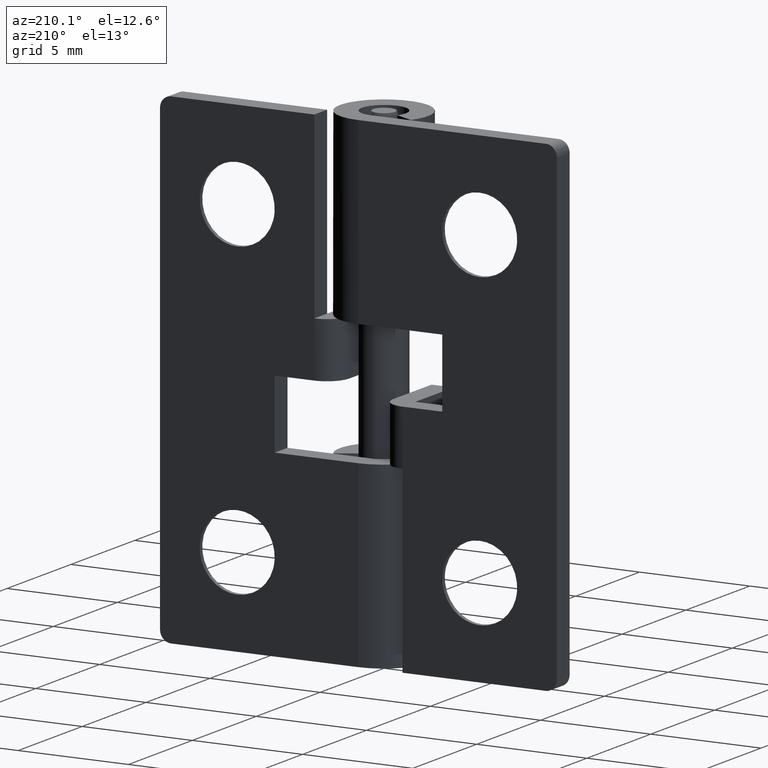
[diagram: clean part render]
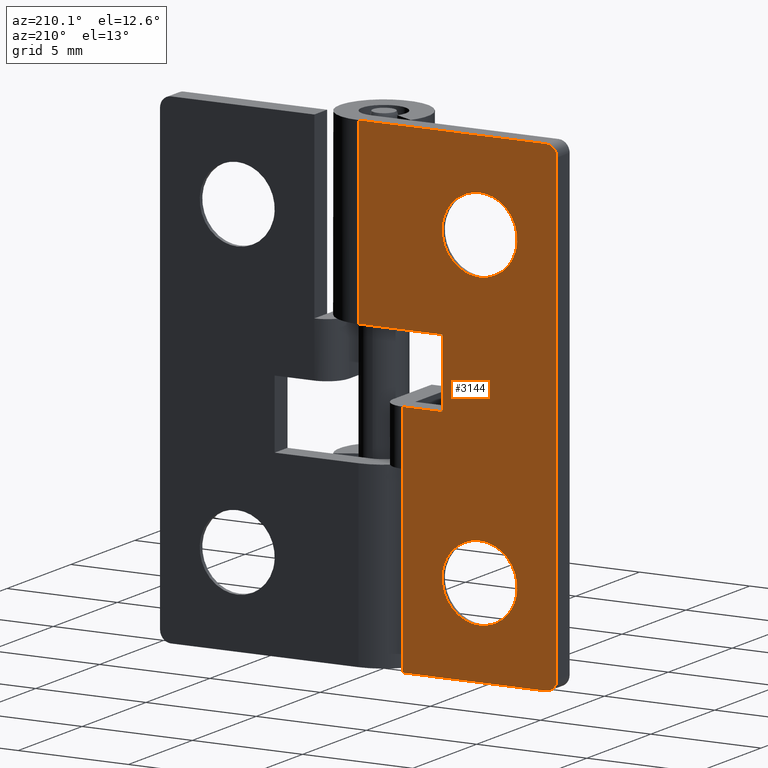
[diagram: same view with one face highlighted and labeled with its STEP entity id]
A machine part, auxiliary view. The second image highlights one B-rep face of the part: STEP entity #3144.
In plain terms, the highlighted face is a freeform B-spline surface patch.
Its self-contained STEP definition (entity closure, byte-faithful):
#1785=CARTESIAN_POINT('',(-3.803170842696131,2.0,18.103782517426779));
#1786=VERTEX_POINT('',#1785);
#1787=CARTESIAN_POINT('',(-5.500000000000000,2.0,16.300000000000001));
#1788=VERTEX_POINT('',#1787);
#1789=CARTESIAN_POINT('',(-3.803170842696130,2.000000000000000,18.103782517426779));
#1790=CARTESIAN_POINT('',(-3.800000000000000,2.000000000000000,18.051939697716669));
#1791=CARTESIAN_POINT('',(-3.799999999999999,2.0,18.0));
#1792=CARTESIAN_POINT('',(-3.799999999999999,2.000000000000000,16.299999999999994));
#1793=CARTESIAN_POINT('',(-5.500000000000000,2.0,16.300000000000001));
#1801=(BOUNDED_CURVE()B_SPLINE_CURVE(2,(#1789,#1790,#1791,#1792,#1793),.UNSPECIFIED.,.F.,.U.)B_SPLINE_CURVE_WITH_KNOTS((3,2,3),(0.239332962219849,0.250000000000000,0.500000000000000),.UNSPECIFIED.)CURVE()GEOMETRIC_REPRESENTATION_ITEM()RATIONAL_B_SPLINE_CURVE((0.976072041625795,0.987502787877467,1.0,0.707106781186548,1.0))REPRESENTATION_ITEM(''));
#1802=EDGE_CURVE('',#1786,#1788,#1801,.T.);
#1804=CARTESIAN_POINT('',(-7.196829157303870,2.0,17.896217482573210));
#1805=VERTEX_POINT('',#1804);
#1806=CARTESIAN_POINT('',(-5.500000000000000,2.0,16.300000000000001));
#1807=CARTESIAN_POINT('',(-7.099200313534285,2.000000000000000,16.299999999999997));
#1808=CARTESIAN_POINT('',(-7.196829157303869,2.0,17.896217482573210));
#1816=(BOUNDED_CURVE()B_SPLINE_CURVE(2,(#1806,#1807,#1808),.UNSPECIFIED.,.F.,.U.)B_SPLINE_CURVE_WITH_KNOTS((3,3),(0.500000000000000,0.739332962219848),.UNSPECIFIED.)CURVE()GEOMETRIC_REPRESENTATION_ITEM()RATIONAL_B_SPLINE_CURVE((1.0,0.719603993309081,0.976072041625794))REPRESENTATION_ITEM(''));
#1817=EDGE_CURVE('',#1788,#1805,#1816,.T.);
#1884=CARTESIAN_POINT('',(-5.500000000000000,2.0,19.699999999999999));
#1885=VERTEX_POINT('',#1884);
#1886=CARTESIAN_POINT('',(-5.500000000000000,2.0,19.699999999999999));
#1887=CARTESIAN_POINT('',(-3.900799686465713,2.000000000000000,19.699999999999999));
#1888=CARTESIAN_POINT('',(-3.803170842696130,2.000000000000000,18.103782517426783));
#1896=(BOUNDED_CURVE()B_SPLINE_CURVE(2,(#1886,#1887,#1888),.UNSPECIFIED.,.F.,.U.)B_SPLINE_CURVE_WITH_KNOTS((3,3),(0.0,0.239332962219848),.UNSPECIFIED.)CURVE()GEOMETRIC_REPRESENTATION_ITEM()RATIONAL_B_SPLINE_CURVE((1.0,0.719603993309081,0.976072041625795))REPRESENTATION_ITEM(''));
#1897=EDGE_CURVE('',#1885,#1786,#1896,.T.);
#1931=CARTESIAN_POINT('',(-7.196829157303869,2.0,17.896217482573210));
#1932=CARTESIAN_POINT('',(-7.200000000000001,2.0,17.948060302283327));
#1933=CARTESIAN_POINT('',(-7.200000000000000,2.0,18.0));
#1934=CARTESIAN_POINT('',(-7.200000000000000,2.000000000000000,19.700000000000006));
#1935=CARTESIAN_POINT('',(-5.500000000000000,2.0,19.699999999999999));
#1943=(BOUNDED_CURVE()B_SPLINE_CURVE(2,(#1931,#1932,#1933,#1934,#1935),.UNSPECIFIED.,.F.,.U.)B_SPLINE_CURVE_WITH_KNOTS((3,2,3),(0.739332962219848,0.750000000000000,1.0),.UNSPECIFIED.)CURVE()GEOMETRIC_REPRESENTATION_ITEM()RATIONAL_B_SPLINE_CURVE((0.976072041625794,0.987502787877466,1.0,0.707106781186548,1.0))REPRESENTATION_ITEM(''));
#1944=EDGE_CURVE('',#1805,#1885,#1943,.T.);
#2097=CARTESIAN_POINT('',(-3.803170842696131,2.0,4.103782517426782));
#2098=VERTEX_POINT('',#2097);
#2099=CARTESIAN_POINT('',(-5.500000000000000,2.0,2.300000000000000));
#2100=VERTEX_POINT('',#2099);
#2101=CARTESIAN_POINT('',(-3.803170842696131,2.000000000000000,4.103782517426782));
#2102=CARTESIAN_POINT('',(-3.800000000000000,2.0,4.051939697716670));
#2103=CARTESIAN_POINT('',(-3.799999999999999,2.0,4.0));
#2104=CARTESIAN_POINT('',(-3.799999999999999,2.000000000000000,2.299999999999999));
#2105=CARTESIAN_POINT('',(-5.500000000000000,2.0,2.300000000000000));
#2113=(BOUNDED_CURVE()B_SPLINE_CURVE(2,(#2101,#2102,#2103,#2104,#2105),.UNSPECIFIED.,.F.,.U.)B_SPLINE_CURVE_WITH_KNOTS((3,2,3),(0.239332962219849,0.250000000000000,0.500000000000000),.UNSPECIFIED.)CURVE()GEOMETRIC_REPRESENTATION_ITEM()RATIONAL_B_SPLINE_CURVE((0.976072041625795,0.987502787877467,1.0,0.707106781186548,1.0))REPRESENTATION_ITEM(''));
#2114=EDGE_CURVE('',#2098,#2100,#2113,.T.);
#2116=CARTESIAN_POINT('',(-7.196829157303870,2.0,3.896217482573218));
#2117=VERTEX_POINT('',#2116);
#2118=CARTESIAN_POINT('',(-5.500000000000000,2.0,2.300000000000000));
#2119=CARTESIAN_POINT('',(-7.099200313534291,2.000000000000000,2.300000000000000));
#2120=CARTESIAN_POINT('',(-7.196829157303869,2.000000000000000,3.896217482573218));
#2128=(BOUNDED_CURVE()B_SPLINE_CURVE(2,(#2118,#2119,#2120),.UNSPECIFIED.,.F.,.U.)B_SPLINE_CURVE_WITH_KNOTS((3,3),(0.500000000000000,0.739332962219849),.UNSPECIFIED.)CURVE()GEOMETRIC_REPRESENTATION_ITEM()RATIONAL_B_SPLINE_CURVE((1.0,0.719603993309080,0.976072041625795))REPRESENTATION_ITEM(''));
#2129=EDGE_CURVE('',#2100,#2117,#2128,.T.);
#2196=CARTESIAN_POINT('',(-5.500000000000000,2.0,5.700000000000000));
#2197=VERTEX_POINT('',#2196);
#2198=CARTESIAN_POINT('',(-5.500000000000000,2.0,5.700000000000000));
#2199=CARTESIAN_POINT('',(-3.900799686465710,2.000000000000000,5.700000000000000));
#2200=CARTESIAN_POINT('',(-3.803170842696130,2.000000000000000,4.103782517426782));
#2208=(BOUNDED_CURVE()B_SPLINE_CURVE(2,(#2198,#2199,#2200),.UNSPECIFIED.,.F.,.U.)B_SPLINE_CURVE_WITH_KNOTS((3,3),(0.0,0.239332962219849),.UNSPECIFIED.)CURVE()GEOMETRIC_REPRESENTATION_ITEM()RATIONAL_B_SPLINE_CURVE((1.0,0.719603993309080,0.976072041625795))REPRESENTATION_ITEM(''));
#2209=EDGE_CURVE('',#2197,#2098,#2208,.T.);
#2243=CARTESIAN_POINT('',(-7.196829157303869,2.000000000000000,3.896217482573218));
#2244=CARTESIAN_POINT('',(-7.199999999999999,2.000000000000000,3.948060302283331));
#2245=CARTESIAN_POINT('',(-7.200000000000000,2.0,4.0));
#2246=CARTESIAN_POINT('',(-7.200000000000000,2.000000000000000,5.699999999999999));
#2247=CARTESIAN_POINT('',(-5.500000000000000,2.0,5.700000000000000));
#2255=(BOUNDED_CURVE()B_SPLINE_CURVE(2,(#2243,#2244,#2245,#2246,#2247),.UNSPECIFIED.,.F.,.U.)B_SPLINE_CURVE_WITH_KNOTS((3,2,3),(0.739332962219849,0.750000000000000,1.0),.UNSPECIFIED.)CURVE()GEOMETRIC_REPRESENTATION_ITEM()RATIONAL_B_SPLINE_CURVE((0.976072041625795,0.987502787877467,1.0,0.707106781186548,1.0))REPRESENTATION_ITEM(''));
#2256=EDGE_CURVE('',#2117,#2197,#2255,.T.);
#2518=CARTESIAN_POINT('',(-2.0,2.0,8.199996999999900));
#2519=VERTEX_POINT('',#2518);
#2535=CARTESIAN_POINT('',(-2.0,2.0,10.699997000000000));
#2536=VERTEX_POINT('',#2535);
#2537=CARTESIAN_POINT('',(-2.0,2.0,10.699997000000000));
#2538=CARTESIAN_POINT('',(-2.0,2.0,8.199996999999900));
#2539=QUASI_UNIFORM_CURVE('',1,(#2537,#2538),.UNSPECIFIED.,.F.,.U.);
#2540=EDGE_CURVE('',#2536,#2519,#2539,.T.);
#2665=CARTESIAN_POINT('',(-3.799995000000000,2.0,10.699997000000000));
#2666=VERTEX_POINT('',#2665);
#2667=CARTESIAN_POINT('',(-3.799995000000000,2.0,10.699997000000000));
#2668=CARTESIAN_POINT('',(-2.0,2.0,10.699997000000000));
#2669=QUASI_UNIFORM_CURVE('',1,(#2667,#2668),.UNSPECIFIED.,.F.,.U.);
#2670=EDGE_CURVE('',#2666,#2536,#2669,.T.);
#2689=CARTESIAN_POINT('',(-3.799995000000000,2.0,13.800003000000000));
#2690=VERTEX_POINT('',#2689);
#2691=CARTESIAN_POINT('',(-3.799995000000000,2.0,13.800003000000000));
#2692=CARTESIAN_POINT('',(-3.799995000000000,2.0,10.699997000000000));
#2693=QUASI_UNIFORM_CURVE('',1,(#2691,#2692),.UNSPECIFIED.,.F.,.U.);
#2694=EDGE_CURVE('',#2690,#2666,#2693,.T.);
#2712=CARTESIAN_POINT('',(0.0,2.0,13.799994999999999));
#2713=VERTEX_POINT('',#2712);
#2788=CARTESIAN_POINT('',(0.0,2.0,13.799994999999999));
#2789=CARTESIAN_POINT('',(-3.799995000000000,2.0,13.800003000000000));
#2790=QUASI_UNIFORM_CURVE('',1,(#2788,#2789),.UNSPECIFIED.,.F.,.U.);
#2791=EDGE_CURVE('',#2713,#2690,#2790,.T.);
#2811=CARTESIAN_POINT('',(-8.500000000000000,2.0,22.0));
#2812=VERTEX_POINT('',#2811);
#2818=CARTESIAN_POINT('',(-9.0,2.0,21.500000000000000));
#2819=VERTEX_POINT('',#2818);
#2820=CARTESIAN_POINT('',(-9.000000000000002,2.0,21.500000000000000));
#2821=CARTESIAN_POINT('',(-9.000000000000002,2.000000000000000,22.000000000000007));
#2822=CARTESIAN_POINT('',(-8.500000000000000,2.0,22.0));
#2830=(BOUNDED_CURVE()B_SPLINE_CURVE(2,(#2820,#2821,#2822),.UNSPECIFIED.,.F.,.U.)CURVE()GEOMETRIC_REPRESENTATION_ITEM()QUASI_UNIFORM_CURVE()RATIONAL_B_SPLINE_CURVE((1.0,0.707106781186548,1.0))REPRESENTATION_ITEM(''));
#2831=EDGE_CURVE('',#2819,#2812,#2830,.T.);
#2856=CARTESIAN_POINT('',(-9.0,2.0,0.499999999999945));
#2857=VERTEX_POINT('',#2856);
#2863=CARTESIAN_POINT('',(-8.500000000000000,2.0,0.0));
#2864=VERTEX_POINT('',#2863);
#2865=CARTESIAN_POINT('',(-8.500000000000000,2.0,0.0));
#2866=CARTESIAN_POINT('',(-8.999999999999945,2.0,0.0));
#2867=CARTESIAN_POINT('',(-9.000000000000002,2.0,0.499999999999945));
#2875=(BOUNDED_CURVE()B_SPLINE_CURVE(2,(#2865,#2866,#2867),.UNSPECIFIED.,.F.,.U.)CURVE()GEOMETRIC_REPRESENTATION_ITEM()QUASI_UNIFORM_CURVE()RATIONAL_B_SPLINE_CURVE((1.0,0.707106781186587,1.0))REPRESENTATION_ITEM(''));
#2876=EDGE_CURVE('',#2864,#2857,#2875,.T.);
#2891=CARTESIAN_POINT('',(0.0,2.0,22.0));
#2892=VERTEX_POINT('',#2891);
#2893=CARTESIAN_POINT('',(-8.500000000000000,2.0,22.0));
#2894=CARTESIAN_POINT('',(0.0,2.0,22.0));
#2895=QUASI_UNIFORM_CURVE('',1,(#2893,#2894),.UNSPECIFIED.,.F.,.U.);
#2896=EDGE_CURVE('',#2812,#2892,#2895,.T.);
#2983=CARTESIAN_POINT('',(-9.0,2.0,21.500000000000000));
#2984=CARTESIAN_POINT('',(-9.0,2.0,0.499999999999945));
#2985=QUASI_UNIFORM_CURVE('',1,(#2983,#2984),.UNSPECIFIED.,.F.,.U.);
#2986=EDGE_CURVE('',#2819,#2857,#2985,.T.);
#2999=CARTESIAN_POINT('',(-2.0,2.0,0.0));
#3000=VERTEX_POINT('',#2999);
#3001=CARTESIAN_POINT('',(-8.500000000000000,2.0,0.0));
#3002=CARTESIAN_POINT('',(-2.0,2.0,0.0));
#3003=QUASI_UNIFORM_CURVE('',1,(#3001,#3002),.UNSPECIFIED.,.F.,.U.);
#3004=EDGE_CURVE('',#2864,#3000,#3003,.T.);
#3089=CARTESIAN_POINT('',(0.0,2.0,22.0));
#3090=CARTESIAN_POINT('',(0.0,2.0,13.799994999999999));
#3091=QUASI_UNIFORM_CURVE('',1,(#3089,#3090),.UNSPECIFIED.,.F.,.U.);
#3092=EDGE_CURVE('',#2892,#2713,#3091,.T.);
#3103=CARTESIAN_POINT('',(-2.0,2.0,8.199996999999900));
#3104=CARTESIAN_POINT('',(-2.0,2.0,0.0));
#3105=QUASI_UNIFORM_CURVE('',1,(#3103,#3104),.UNSPECIFIED.,.F.,.U.);
#3106=EDGE_CURVE('',#2519,#3000,#3105,.T.);
#3114=CARTESIAN_POINT('',(-9.449549982556253,2.0,-1.098899957359731));
#3115=CARTESIAN_POINT('',(-9.449549982556253,2.0,23.098900547445709));
#3116=CARTESIAN_POINT('',(0.449550223955065,2.0,-1.098899957359731));
#3117=CARTESIAN_POINT('',(0.449550223955065,2.0,23.098900547445709));
#3118=B_SPLINE_SURFACE_WITH_KNOTS('',1,1,((#3114,#3116),(#3115,#3117)),.UNSPECIFIED.,.F.,.F.,.U.,(2,2),(2,2),(0.0,24.197800504805439),(0.0,9.899100206511317),.UNSPECIFIED.);
#3119=ORIENTED_EDGE('',*,*,#2670,.T.);
#3120=ORIENTED_EDGE('',*,*,#2540,.T.);
#3121=ORIENTED_EDGE('',*,*,#3106,.T.);
#3122=ORIENTED_EDGE('',*,*,#3004,.F.);
#3123=ORIENTED_EDGE('',*,*,#2876,.T.);
#3124=ORIENTED_EDGE('',*,*,#2986,.F.);
#3125=ORIENTED_EDGE('',*,*,#2831,.T.);
#3126=ORIENTED_EDGE('',*,*,#2896,.T.);
#3127=ORIENTED_EDGE('',*,*,#3092,.T.);
#3128=ORIENTED_EDGE('',*,*,#2791,.T.);
#3129=ORIENTED_EDGE('',*,*,#2694,.T.);
#3130=EDGE_LOOP('',(#3119,#3120,#3121,#3122,#3123,#3124,#3125,#3126,#3127,#3128,#3129));
#3131=FACE_OUTER_BOUND('',#3130,.T.);
#3132=ORIENTED_EDGE('',*,*,#2129,.F.);
#3133=ORIENTED_EDGE('',*,*,#2114,.F.);
#3134=ORIENTED_EDGE('',*,*,#2209,.F.);
#3135=ORIENTED_EDGE('',*,*,#2256,.F.);
#3136=EDGE_LOOP('',(#3132,#3133,#3134,#3135));
#3137=FACE_BOUND('',#3136,.T.);
#3138=ORIENTED_EDGE('',*,*,#1817,.F.);
#3139=ORIENTED_EDGE('',*,*,#1802,.F.);
#3140=ORIENTED_EDGE('',*,*,#1897,.F.);
#3141=ORIENTED_EDGE('',*,*,#1944,.F.);
#3142=EDGE_LOOP('',(#3138,#3139,#3140,#3141));
#3143=FACE_BOUND('',#3142,.T.);
#3144=ADVANCED_FACE('',(#3131,#3137,#3143),#3118,.T.);